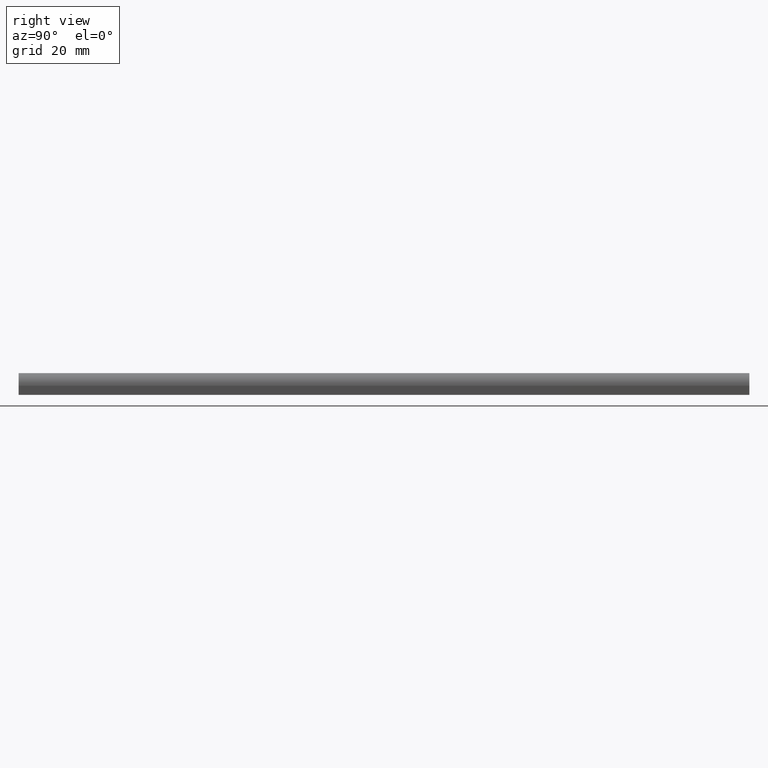
[diagram: clean part render]
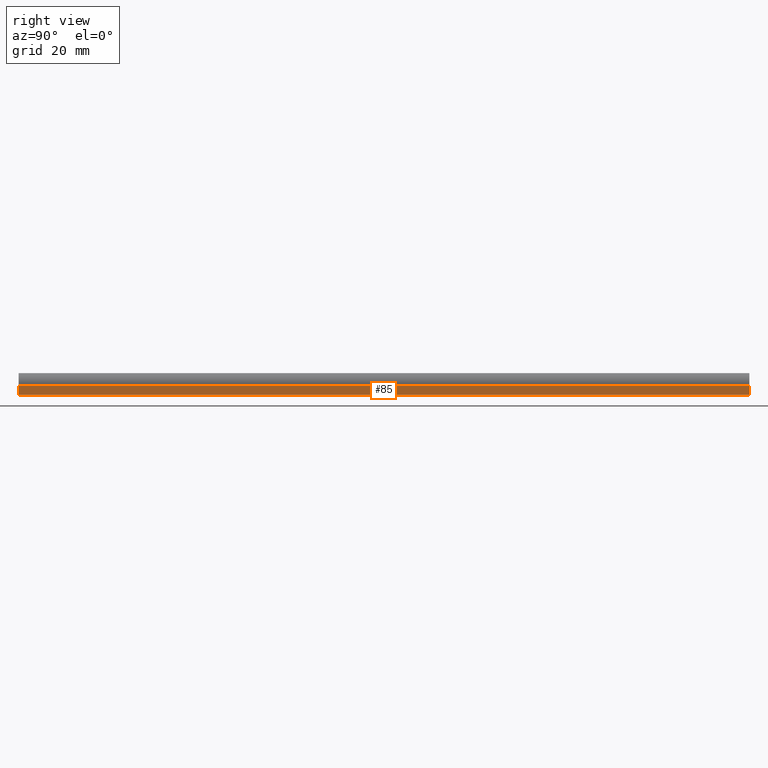
[diagram: same view with one face highlighted and labeled with its STEP entity id]
A machine part, right view. The second image highlights one B-rep face of the part: STEP entity #85.
In plain terms, the highlighted planar face has unit normal (1, 0, 0).
Its self-contained STEP definition (entity closure, byte-faithful):
#5 = VERTEX_POINT ( 'NONE', #239 ) ;
#20 = FACE_OUTER_BOUND ( 'NONE', #162, .T. ) ;
#25 = LINE ( 'NONE', #205, #30 ) ;
#30 = VECTOR ( 'NONE', #152, 1000.000000000000000 ) ;
#35 = CARTESIAN_POINT ( 'NONE',  ( 3.500000000000000000, 0.0000000000000000000, 0.0000000000000000000 ) ) ;
#37 = VECTOR ( 'NONE', #54, 1000.000000000000000 ) ;
#44 = ORIENTED_EDGE ( 'NONE', *, *, #120, .T. ) ;
#51 = DIRECTION ( 'NONE',  ( 0.0000000000000000000, -1.000000000000000000, 0.0000000000000000000 ) ) ;
#52 = VERTEX_POINT ( 'NONE', #94 ) ;
#53 = CARTESIAN_POINT ( 'NONE',  ( 3.500000000000000000, 1000.000000000000000, -3.000000000000000000 ) ) ;
#54 = DIRECTION ( 'NONE',  ( -0.0000000000000000000, -0.0000000000000000000, 1.000000000000000000 ) ) ;
#55 = EDGE_CURVE ( 'NONE', #5, #201, #89, .T. ) ;
#63 = LINE ( 'NONE', #35, #37 ) ;
#70 = CARTESIAN_POINT ( 'NONE',  ( 3.500000000000000000, 200.0000000000000000, -0.5000000000000000000 ) ) ;
#74 = VERTEX_POINT ( 'NONE', #104 ) ;
#75 = LINE ( 'NONE', #53, #218 ) ;
#85 = ADVANCED_FACE ( 'NONE', ( #20 ), #116, .T. ) ;
#86 = DIRECTION ( 'NONE',  ( 1.000000000000000000, 0.0000000000000000000, 0.0000000000000000000 ) ) ;
#87 = CARTESIAN_POINT ( 'NONE',  ( 3.500000000000000000, 200.0000000000000000, 0.0000000000000000000 ) ) ;
#89 = LINE ( 'NONE', #87, #219 ) ;
#94 = CARTESIAN_POINT ( 'NONE',  ( 3.500000000000000000, 0.0000000000000000000, -0.5000000000000000000 ) ) ;
#99 = EDGE_CURVE ( 'NONE', #74, #52, #63, .T. ) ;
#104 = CARTESIAN_POINT ( 'NONE',  ( 3.500000000000000000, 0.0000000000000000000, -3.000000000000000000 ) ) ;
#106 = DIRECTION ( 'NONE',  ( -0.0000000000000000000, -0.0000000000000000000, 1.000000000000000000 ) ) ;
#116 = PLANE ( 'NONE',  #206 ) ;
#120 = EDGE_CURVE ( 'NONE', #201, #52, #25, .T. ) ;
#140 = EDGE_CURVE ( 'NONE', #5, #74, #75, .T. ) ;
#146 = CARTESIAN_POINT ( 'NONE',  ( 3.500000000000000000, 1000.000000000000000, -3.000000000000000000 ) ) ;
#152 = DIRECTION ( 'NONE',  ( 0.0000000000000000000, -1.000000000000000000, 0.0000000000000000000 ) ) ;
#162 = EDGE_LOOP ( 'NONE', ( #197, #188, #196, #44 ) ) ;
#171 = DIRECTION ( 'NONE',  ( 0.0000000000000000000, 0.0000000000000000000, -1.000000000000000000 ) ) ;
#188 = ORIENTED_EDGE ( 'NONE', *, *, #140, .F. ) ;
#196 = ORIENTED_EDGE ( 'NONE', *, *, #55, .T. ) ;
#197 = ORIENTED_EDGE ( 'NONE', *, *, #99, .F. ) ;
#201 = VERTEX_POINT ( 'NONE', #70 ) ;
#205 = CARTESIAN_POINT ( 'NONE',  ( 3.500000000000000000, 1000.000000000000000, -0.5000000000000000000 ) ) ;
#206 = AXIS2_PLACEMENT_3D ( 'NONE', #146, #86, #171 ) ;
#218 = VECTOR ( 'NONE', #51, 1000.000000000000000 ) ;
#219 = VECTOR ( 'NONE', #106, 1000.000000000000000 ) ;
#239 = CARTESIAN_POINT ( 'NONE',  ( 3.500000000000000000, 200.0000000000000000, -3.000000000000000000 ) ) ;